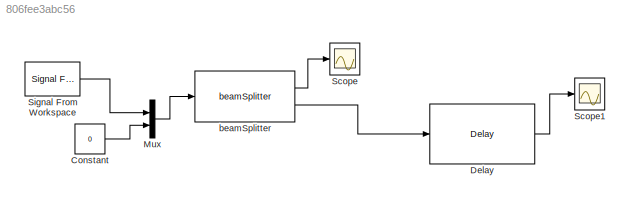
MODEL slx_806fee3abc56
KIND model
CONFIG InitFcn = clear;\nPulse.clearPulses();\ninitPulse  = Pulse([]);\ninitPulseID = initPulse.ID;\ninputsignal = zeros(10,1);\ninputsignal(1) = initPulseID;
BLOCK [Constant] Constant
  Value = 0
BLOCK [Reference] Delay  REF=BlockLib/Delay
  Ports = [1, 1]
  SourceBlock = BlockLib/Delay
  SourceType = SubSystem
BLOCK [Mux] Mux
  DisplayOption = bar
  Inputs = 2
  Ports = [2, 1]
BLOCK [Scope] Scope
  Floating = off
  NumInputPorts = 1
  Ports = [1]
  ShowLegends = off
BLOCK [Scope] Scope1
  Floating = off
  NumInputPorts = 1
  Ports = [1]
  SaveName = ScopeData1
  ShowLegends = off
BLOCK [Reference] Signal From Workspace  REF=dspsrcs4/Signal From
Workspace
  OutputAfterFinalValue = Setting to zero
  Ports = [0, 1]
  SourceBlock = dspsrcs4/Signal From\nWorkspace
  SourceType = Signal From Workspace
  Ts = 1
  X = inputsignal
  ignoreOrWarnInputAndFrameLengths = off
  nsamps = 1
BLOCK [Reference] beamSplitter   REF=BlockLib/beamSplitter

  Ports = [1, 2]
  SourceBlock = BlockLib/beamSplitter
  SourceType = SubSystem
LINE Constant:1 -> Mux:2
LINE Delay:1 -> Scope1:1
LINE Mux:1 -> beamSplitter :1
LINE Signal From Workspace:1 -> Mux:1
LINE beamSplitter :1 -> Scope:1
LINE beamSplitter :2 -> Delay:1
